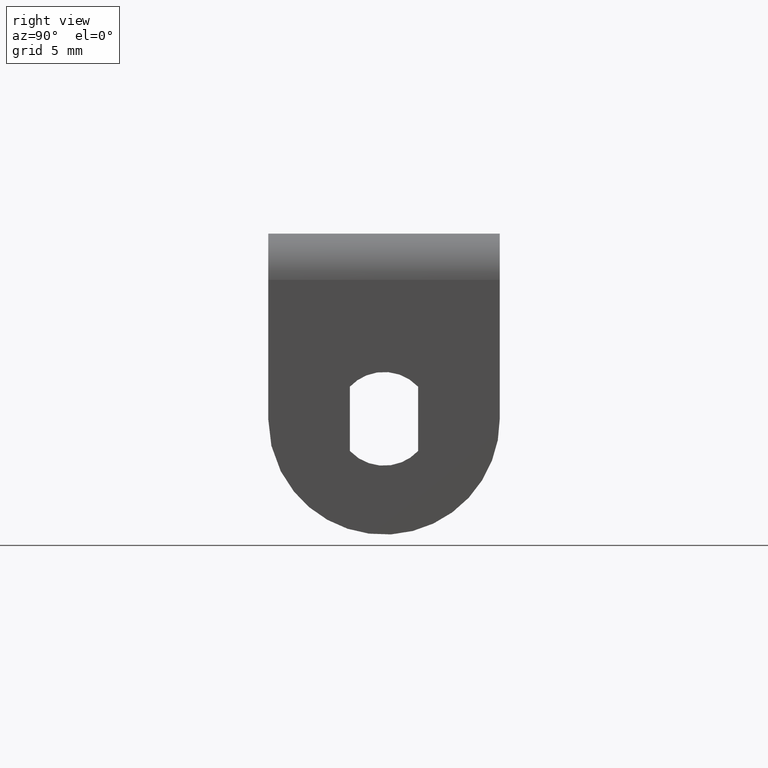
[diagram: clean part render]
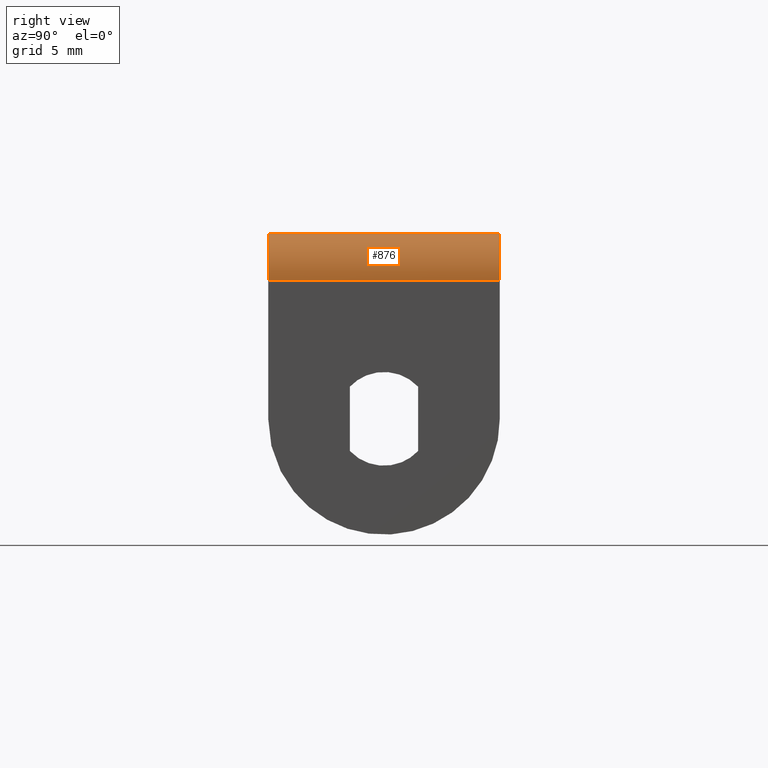
[diagram: same view with one face highlighted and labeled with its STEP entity id]
A machine part, right view. The second image highlights one B-rep face of the part: STEP entity #876.
In plain terms, the highlighted face is a freeform B-spline surface patch.
Its self-contained STEP definition (entity closure, byte-faithful):
#816=CARTESIAN_POINT('',(-0.000685350048886,-5.250000000000295,5.947646103384251));
#817=CARTESIAN_POINT('',(-0.000685350048886,5.256249999999897,5.947646103384251));
#818=CARTESIAN_POINT('',(0.056448902391983,-5.250000000000295,8.129515177188235));
#819=CARTESIAN_POINT('',(0.056448902391983,5.256249999999897,8.129515177188235));
#820=CARTESIAN_POINT('',(-2.122097079069710,-5.250000000000295,7.996269596843734));
#821=CARTESIAN_POINT('',(-2.122097079069710,5.256249999999897,7.996269596843734));
#829=(BOUNDED_SURFACE()B_SPLINE_SURFACE(1,2,((#816,#818,#820),(#817,#819,#821)),.UNSPECIFIED.,.F.,.F.,.U.)B_SPLINE_SURFACE_WITH_KNOTS((2,2),(3,3),(0.0,10.506250000000190),(0.0,3.520084247134666),.UNSPECIFIED.)GEOMETRIC_REPRESENTATION_ITEM()RATIONAL_B_SPLINE_SURFACE(((1.0,0.675590207615660,1.0),(1.0,0.675590207615660,1.0)))REPRESENTATION_ITEM('')SURFACE());
#830=CARTESIAN_POINT('',(-2.0,4.999999999999890,8.0));
#831=VERTEX_POINT('',#830);
#832=CARTESIAN_POINT('',(0.0,4.999999999999890,6.0));
#833=VERTEX_POINT('',#832);
#834=CARTESIAN_POINT('',(-2.0,4.999999999999890,8.0));
#835=CARTESIAN_POINT('',(0.0,4.999999999999890,8.0));
#836=CARTESIAN_POINT('',(0.0,4.999999999999890,6.0));
#844=(BOUNDED_CURVE()B_SPLINE_CURVE(2,(#834,#835,#836),.UNSPECIFIED.,.F.,.U.)CURVE()GEOMETRIC_REPRESENTATION_ITEM()QUASI_UNIFORM_CURVE()RATIONAL_B_SPLINE_CURVE((1.0,0.707106781186548,1.0))REPRESENTATION_ITEM(''));
#845=EDGE_CURVE('',#831,#833,#844,.T.);
#846=ORIENTED_EDGE('',*,*,#845,.F.);
#847=CARTESIAN_POINT('',(-2.0,-5.000000000000290,8.0));
#848=VERTEX_POINT('',#847);
#849=CARTESIAN_POINT('',(-2.0,-5.000000000000290,8.0));
#850=CARTESIAN_POINT('',(-2.0,4.999999999999890,8.0));
#851=QUASI_UNIFORM_CURVE('',1,(#849,#850),.UNSPECIFIED.,.F.,.U.);
#852=EDGE_CURVE('',#848,#831,#851,.T.);
#853=ORIENTED_EDGE('',*,*,#852,.F.);
#854=CARTESIAN_POINT('',(0.0,-5.000000000000290,6.0));
#855=VERTEX_POINT('',#854);
#856=CARTESIAN_POINT('',(0.0,-5.000000000000290,6.0));
#857=CARTESIAN_POINT('',(0.0,-5.000000000000290,8.0));
#858=CARTESIAN_POINT('',(-2.0,-5.000000000000290,8.0));
#866=(BOUNDED_CURVE()B_SPLINE_CURVE(2,(#856,#857,#858),.UNSPECIFIED.,.F.,.U.)CURVE()GEOMETRIC_REPRESENTATION_ITEM()QUASI_UNIFORM_CURVE()RATIONAL_B_SPLINE_CURVE((1.0,0.707106781186548,1.0))REPRESENTATION_ITEM(''));
#867=EDGE_CURVE('',#855,#848,#866,.T.);
#868=ORIENTED_EDGE('',*,*,#867,.F.);
#869=CARTESIAN_POINT('',(0.0,4.999999999999890,6.0));
#870=CARTESIAN_POINT('',(0.0,-5.000000000000290,6.0));
#871=QUASI_UNIFORM_CURVE('',1,(#869,#870),.UNSPECIFIED.,.F.,.U.);
#872=EDGE_CURVE('',#833,#855,#871,.T.);
#873=ORIENTED_EDGE('',*,*,#872,.F.);
#874=EDGE_LOOP('',(#846,#853,#868,#873));
#875=FACE_OUTER_BOUND('',#874,.T.);
#876=ADVANCED_FACE('',(#875),#829,.T.);